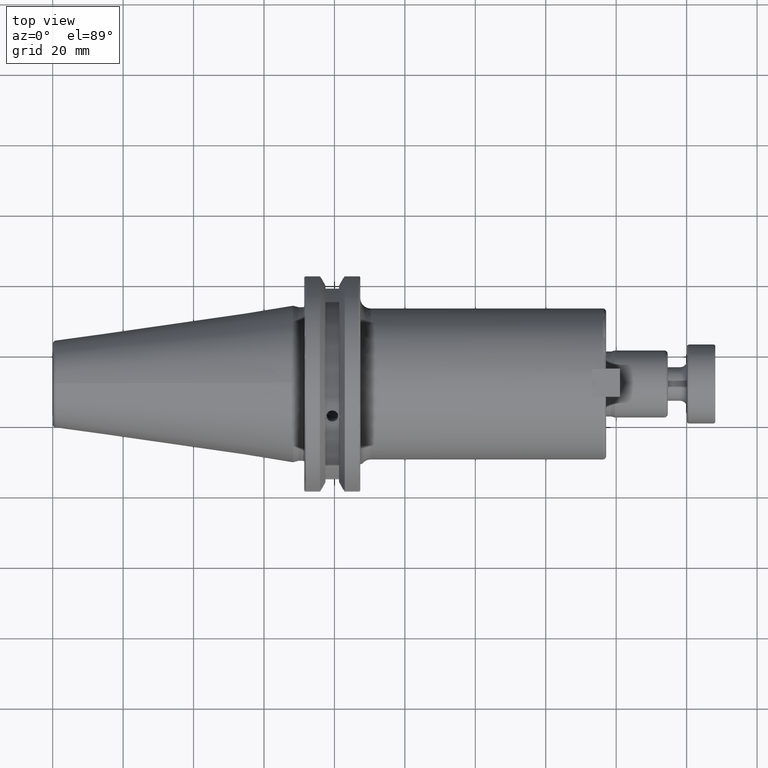
[diagram: clean part render]
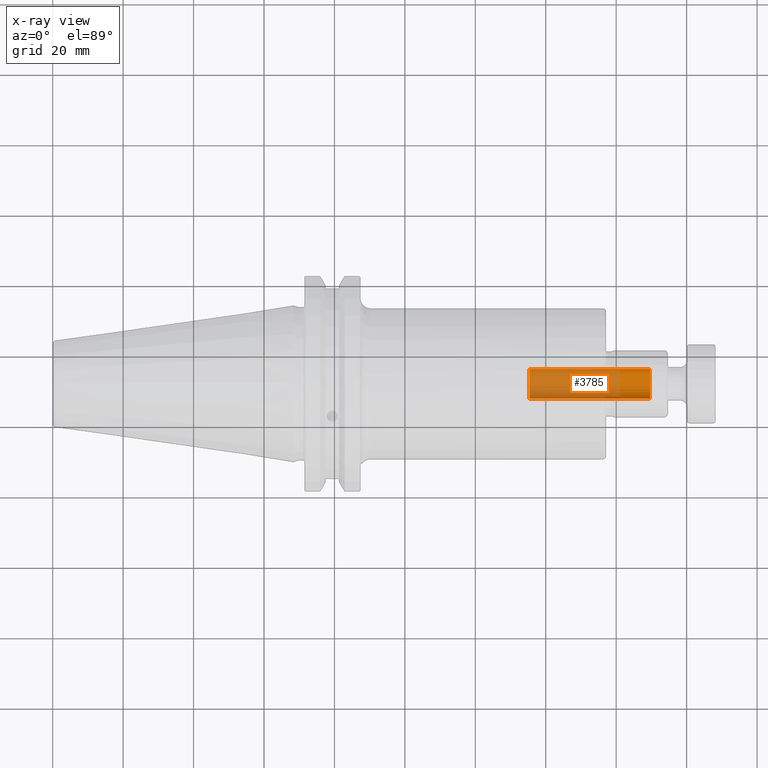
[diagram: x-ray — body ghosted, one internal face saturated and labeled with its STEP entity id]
A machine part, top view, then the same camera in x-ray: the body is ghosted and one INTERNAL B-rep face — a face not visible from any outside direction — is saturated and labeled: STEP entity #3785.
In plain terms, the highlighted cylindrical surface (edge-blend (fillet) strip) has radius 4.2164 mm, axis along (1, 0, 0).
Its self-contained STEP definition (entity closure, byte-faithful):
#988=CARTESIAN_POINT('',(3.989826771654E0,0.E0,0.E0));
#989=DIRECTION('',(1.E0,0.E0,0.E0));
#990=DIRECTION('',(0.E0,-1.E0,0.E0));
#991=AXIS2_PLACEMENT_3D('',#988,#989,#990);
#1006=DIRECTION('',(1.E0,0.E0,0.E0));
#1007=VECTOR('',#1006,1.347929557219E0);
#1008=CARTESIAN_POINT('',(2.641897214435E0,-1.66E-1,0.E0));
#1009=LINE('',#1008,#1007);
#1010=DIRECTION('',(1.E0,0.E0,0.E0));
#1011=VECTOR('',#1010,1.347929557219E0);
#1012=CARTESIAN_POINT('',(2.641897214435E0,1.66E-1,0.E0));
#1013=LINE('',#1012,#1011);
#1014=CARTESIAN_POINT('',(2.641897214435E0,0.E0,0.E0));
#1015=DIRECTION('',(1.E0,0.E0,0.E0));
#1016=DIRECTION('',(0.E0,-1.E0,0.E0));
#1017=AXIS2_PLACEMENT_3D('',#1014,#1015,#1016);
#2526=CARTESIAN_POINT('',(3.989826771654E0,-1.66E-1,0.E0));
#2528=VERTEX_POINT('',#2526);
#2530=CARTESIAN_POINT('',(3.989826771654E0,1.66E-1,0.E0));
#2532=VERTEX_POINT('',#2530);
#2534=CARTESIAN_POINT('',(2.641897214435E0,-1.66E-1,0.E0));
#2535=VERTEX_POINT('',#2534);
#2536=CARTESIAN_POINT('',(2.641897214435E0,1.66E-1,0.E0));
#2537=VERTEX_POINT('',#2536);
#3773=CARTESIAN_POINT('',(-3.752634094488E0,0.E0,0.E0));
#3774=DIRECTION('',(1.E0,0.E0,0.E0));
#3775=DIRECTION('',(0.E0,-1.E0,0.E0));
#3776=AXIS2_PLACEMENT_3D('',#3773,#3774,#3775);
#3777=CYLINDRICAL_SURFACE('',#3776,1.66E-1);
#3778=ORIENTED_EDGE('',*,*,#3763,.F.);
#3780=ORIENTED_EDGE('',*,*,#3779,.T.);
#3781=ORIENTED_EDGE('',*,*,#3766,.T.);
#3782=ORIENTED_EDGE('',*,*,#3737,.F.);
#3783=EDGE_LOOP('',(#3778,#3780,#3781,#3782));
#3784=FACE_OUTER_BOUND('',#3783,.F.);
#3785=ADVANCED_FACE('',(#3784),#3777,.F.);
#992=CIRCLE('',#991,1.66E-1);
#1018=CIRCLE('',#1017,1.66E-1);
#3737=EDGE_CURVE('',#2528,#2532,#992,.T.);
#3763=EDGE_CURVE('',#2535,#2528,#1009,.T.);
#3766=EDGE_CURVE('',#2537,#2532,#1013,.T.);
#3779=EDGE_CURVE('',#2535,#2537,#1018,.T.);